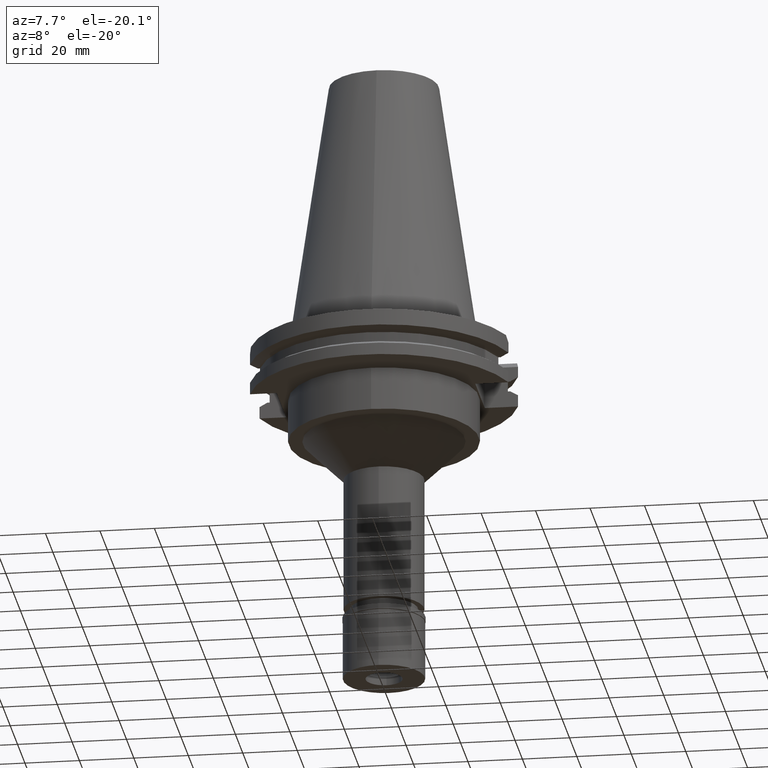
[diagram: clean part render]
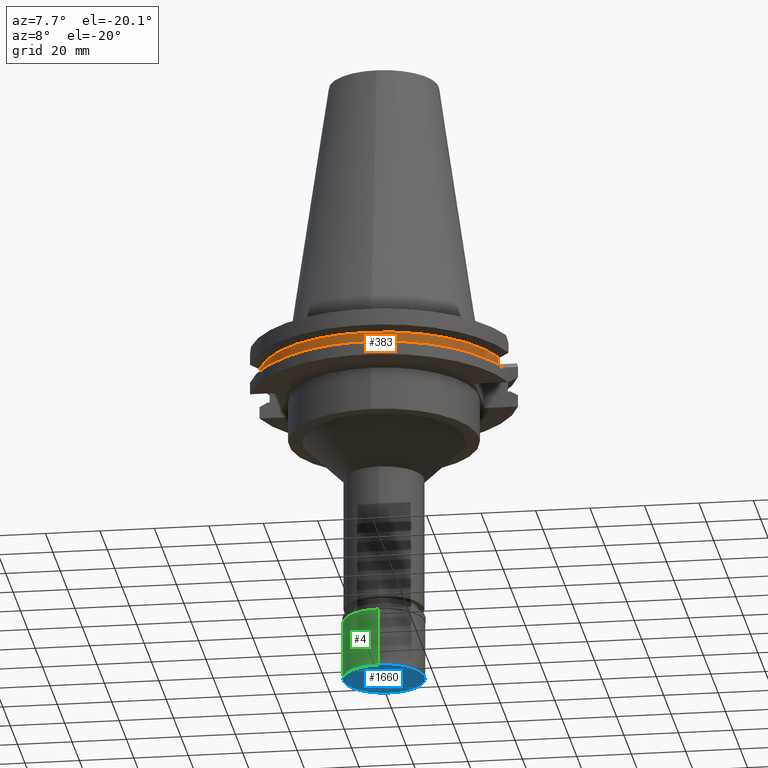
[diagram: same view with three faces highlighted in distinct colors, each labeled with its STEP entity id]
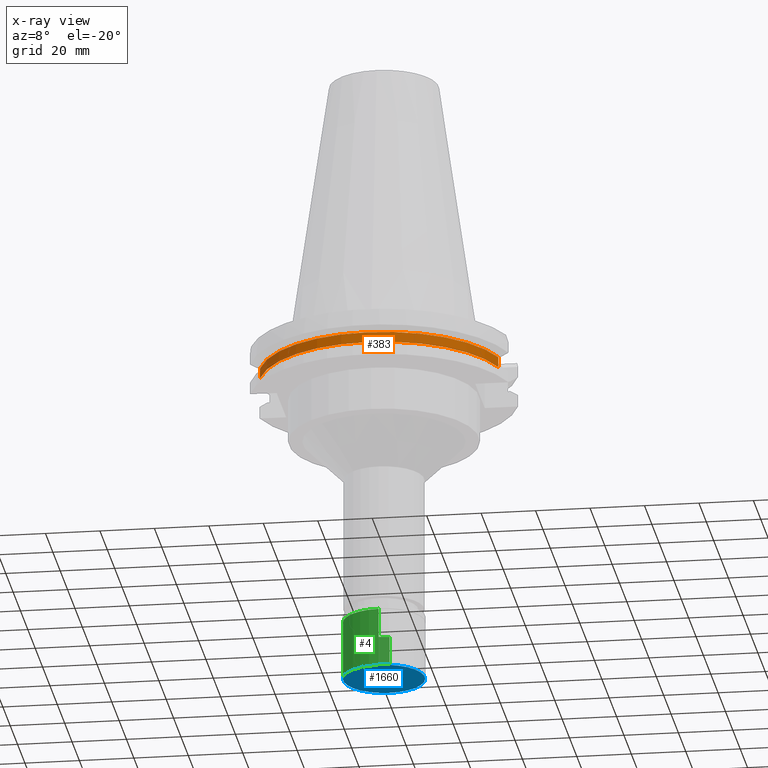
[diagram: x-ray of the same camera — body ghosted, the three highlighted faces saturated]
A machine part, auxiliary view with three faces highlighted in distinct colors.
The next image is the same camera in x-ray (body ghosted, the three faces saturated) — at least one of them is partly hidden behind the body in this view.
Their STEP definitions:

[orange] entity #383 — the highlighted cylindrical surface (partial cylindrical patch) has radius 45.645 mm, axis along (0, 0, -1).
#41 = ORIENTED_EDGE ( 'NONE', *, *, #2525, .T. ) ;
#360 = EDGE_CURVE ( 'NONE', #435, #1109, #395, .T. ) ;
#383 = ADVANCED_FACE ( 'NONE', ( #982 ), #1518, .T. ) ;
#395 = CIRCLE ( 'NONE', #721, 45.64499999999999602 ) ;
#435 = VERTEX_POINT ( 'NONE', #2762 ) ;
#622 = DIRECTION ( 'NONE',  ( 0.0000000000000000000, -1.000000000000000000, 0.0000000000000000000 ) ) ;
#657 = CARTESIAN_POINT ( 'NONE',  ( 0.0000000000000000000, 2.602741842227999566E-14, 112.5300000000000011 ) ) ;
#708 = DIRECTION ( 'NONE',  ( 0.0000000000000000000, 0.0000000000000000000, 1.000000000000000000 ) ) ;
#719 = ORIENTED_EDGE ( 'NONE', *, *, #2398, .F. ) ;
#721 = AXIS2_PLACEMENT_3D ( 'NONE', #1105, #1593, #1342 ) ;
#758 = CARTESIAN_POINT ( 'NONE',  ( 43.76795631508999662, -12.95500000000000007, -9.207499999999999574 ) ) ;
#959 = LINE ( 'NONE', #2442, #3115 ) ;
#982 = FACE_OUTER_BOUND ( 'NONE', #2833, .T. ) ;
#1011 = DIRECTION ( 'NONE',  ( 0.0000000000000000000, 0.0000000000000000000, -1.000000000000000000 ) ) ;
#1105 = CARTESIAN_POINT ( 'NONE',  ( 0.0000000000000000000, 2.602741842227999566E-14, -13.04749999999999943 ) ) ;
#1109 = VERTEX_POINT ( 'NONE', #2404 ) ;
#1295 = CARTESIAN_POINT ( 'NONE',  ( -43.76795631508999662, -12.95500000000000007, -9.207499999999999574 ) ) ;
#1342 = DIRECTION ( 'NONE',  ( 0.0000000000000000000, -1.000000000000000000, 0.0000000000000000000 ) ) ;
#1398 = VERTEX_POINT ( 'NONE', #758 ) ;
#1518 = CYLINDRICAL_SURFACE ( 'NONE', #1635, 45.64499999999999602 ) ;
#1538 = DIRECTION ( 'NONE',  ( 0.9588773428654665532, -0.2838207908861898887, 0.0000000000000000000 ) ) ;
#1539 = DIRECTION ( 'NONE',  ( 0.0000000000000000000, 0.0000000000000000000, -1.000000000000000000 ) ) ;
#1558 = EDGE_CURVE ( 'NONE', #435, #1702, #2775, .T. ) ;
#1584 = CARTESIAN_POINT ( 'NONE',  ( 0.0000000000000000000, 2.602741842227999566E-14, -9.207499999999999574 ) ) ;
#1593 = DIRECTION ( 'NONE',  ( 0.0000000000000000000, 0.0000000000000000000, 1.000000000000000000 ) ) ;
#1635 = AXIS2_PLACEMENT_3D ( 'NONE', #657, #1539, #622 ) ;
#1702 = VERTEX_POINT ( 'NONE', #1295 ) ;
#1924 = VECTOR ( 'NONE', #708, 1000.000000000000000 ) ;
#1995 = ORIENTED_EDGE ( 'NONE', *, *, #1558, .F. ) ;
#2234 = CARTESIAN_POINT ( 'NONE',  ( -43.76795631508999662, -12.95500000000000007, -13.04749999999999943 ) ) ;
#2262 = CIRCLE ( 'NONE', #2478, 45.64500000000001734 ) ;
#2398 = EDGE_CURVE ( 'NONE', #1398, #1109, #959, .T. ) ;
#2404 = CARTESIAN_POINT ( 'NONE',  ( 43.76795631508999662, -12.95500000000000007, -13.04749999999999943 ) ) ;
#2442 = CARTESIAN_POINT ( 'NONE',  ( 43.76795631508999662, -12.95500000000000007, -9.207499999999999574 ) ) ;
#2478 = AXIS2_PLACEMENT_3D ( 'NONE', #1584, #1011, #1538 ) ;
#2525 = EDGE_CURVE ( 'NONE', #1398, #1702, #2262, .T. ) ;
#2762 = CARTESIAN_POINT ( 'NONE',  ( -43.76795631508999662, -12.95500000000000007, -13.04749999999999943 ) ) ;
#2775 = LINE ( 'NONE', #2234, #1924 ) ;
#2833 = EDGE_LOOP ( 'NONE', ( #1995, #2894, #719, #41 ) ) ;
#2894 = ORIENTED_EDGE ( 'NONE', *, *, #360, .T. ) ;
#2938 = DIRECTION ( 'NONE',  ( 0.0000000000000000000, 0.0000000000000000000, -1.000000000000000000 ) ) ;
#3115 = VECTOR ( 'NONE', #2938, 1000.000000000000000 ) ;

[blue] entity #1660 — the highlighted planar face has unit normal (0, 0, -1).
#59 = CARTESIAN_POINT ( 'NONE',  ( 0.0000000000000000000, -6.750000000000000000, -23.80000000000000071 ) ) ;
#240 = DIRECTION ( 'NONE',  ( 0.0000000000000000000, 0.0000000000000000000, -1.000000000000000000 ) ) ;
#287 = EDGE_CURVE ( 'NONE', #1668, #1621, #447, .T. ) ;
#364 = DIRECTION ( 'NONE',  ( 0.0000000000000000000, 0.0000000000000000000, 1.000000000000000000 ) ) ;
#447 = CIRCLE ( 'NONE', #3117, 6.750000000000000000 ) ;
#457 = AXIS2_PLACEMENT_3D ( 'NONE', #1405, #3240, #2223 ) ;
#485 = DIRECTION ( 'NONE',  ( 0.0000000000000000000, 1.000000000000000000, 0.0000000000000000000 ) ) ;
#562 = PLANE ( 'NONE',  #2569 ) ;
#803 = DIRECTION ( 'NONE',  ( 0.0000000000000000000, 0.0000000000000000000, -1.000000000000000000 ) ) ;
#857 = CARTESIAN_POINT ( 'NONE',  ( 0.0000000000000000000, 0.0000000000000000000, -23.80000000000000071 ) ) ;
#1041 = CARTESIAN_POINT ( 'NONE',  ( 0.0000000000000000000, 6.750000000000000000, -23.80000000000000071 ) ) ;
#1072 = CARTESIAN_POINT ( 'NONE',  ( 0.0000000000000000000, 0.0000000000000000000, -23.80000000000000071 ) ) ;
#1096 = CARTESIAN_POINT ( 'NONE',  ( 0.0000000000000000000, -15.00000000000000000, -23.80000000000000071 ) ) ;
#1134 = DIRECTION ( 'NONE',  ( 0.0000000000000000000, 1.000000000000000000, 0.0000000000000000000 ) ) ;
#1191 = AXIS2_PLACEMENT_3D ( 'NONE', #857, #364, #1134 ) ;
#1248 = CIRCLE ( 'NONE', #457, 15.00000000000000000 ) ;
#1344 = FACE_BOUND ( 'NONE', #1652, .T. ) ;
#1357 = CARTESIAN_POINT ( 'NONE',  ( 0.0000000000000000000, 15.00000000000000000, -23.80000000000000071 ) ) ;
#1405 = CARTESIAN_POINT ( 'NONE',  ( 0.0000000000000000000, 0.0000000000000000000, -23.80000000000000071 ) ) ;
#1561 = EDGE_CURVE ( 'NONE', #1621, #1668, #2836, .T. ) ;
#1621 = VERTEX_POINT ( 'NONE', #1041 ) ;
#1646 = VERTEX_POINT ( 'NONE', #1096 ) ;
#1652 = EDGE_LOOP ( 'NONE', ( #2951, #2317 ) ) ;
#1660 = ADVANCED_FACE ( 'NONE', ( #1846, #1344 ), #562, .T. ) ;
#1668 = VERTEX_POINT ( 'NONE', #59 ) ;
#1785 = CARTESIAN_POINT ( 'NONE',  ( 0.0000000000000000000, 0.0000000000000000000, -23.80000000000000071 ) ) ;
#1787 = CIRCLE ( 'NONE', #1191, 15.00000000000000000 ) ;
#1802 = DIRECTION ( 'NONE',  ( 0.0000000000000000000, -1.000000000000000000, 0.0000000000000000000 ) ) ;
#1846 = FACE_OUTER_BOUND ( 'NONE', #2672, .T. ) ;
#1930 = ORIENTED_EDGE ( 'NONE', *, *, #2821, .F. ) ;
#2052 = CARTESIAN_POINT ( 'NONE',  ( 0.0000000000000000000, 0.0000000000000000000, -23.80000000000000071 ) ) ;
#2149 = VERTEX_POINT ( 'NONE', #1357 ) ;
#2223 = DIRECTION ( 'NONE',  ( 0.0000000000000000000, -1.000000000000000000, 0.0000000000000000000 ) ) ;
#2317 = ORIENTED_EDGE ( 'NONE', *, *, #287, .F. ) ;
#2322 = DIRECTION ( 'NONE',  ( 0.0000000000000000000, -1.000000000000000000, 0.0000000000000000000 ) ) ;
#2415 = ORIENTED_EDGE ( 'NONE', *, *, #2891, .F. ) ;
#2569 = AXIS2_PLACEMENT_3D ( 'NONE', #1072, #803, #2322 ) ;
#2672 = EDGE_LOOP ( 'NONE', ( #1930, #2415 ) ) ;
#2821 = EDGE_CURVE ( 'NONE', #2149, #1646, #1787, .T. ) ;
#2836 = CIRCLE ( 'NONE', #3264, 6.750000000000000000 ) ;
#2891 = EDGE_CURVE ( 'NONE', #1646, #2149, #1248, .T. ) ;
#2951 = ORIENTED_EDGE ( 'NONE', *, *, #1561, .F. ) ;
#3086 = DIRECTION ( 'NONE',  ( 0.0000000000000000000, 0.0000000000000000000, -1.000000000000000000 ) ) ;
#3117 = AXIS2_PLACEMENT_3D ( 'NONE', #1785, #3086, #1802 ) ;
#3240 = DIRECTION ( 'NONE',  ( 0.0000000000000000000, 0.0000000000000000000, 1.000000000000000000 ) ) ;
#3264 = AXIS2_PLACEMENT_3D ( 'NONE', #2052, #240, #485 ) ;

[green] entity #4 — the highlighted cylindrical surface (partial cylindrical patch) has radius 15 mm, axis along (0, 0, -1).
#4 = ADVANCED_FACE ( 'NONE', ( #451 ), #3272, .T. ) ;
#35 = DIRECTION ( 'NONE',  ( 0.0000000000000000000, 0.0000000000000000000, -1.000000000000000000 ) ) ;
#113 = VECTOR ( 'NONE', #1762, 1000.000000000000000 ) ;
#216 = EDGE_LOOP ( 'NONE', ( #1095, #1671, #2978, #958 ) ) ;
#276 = VECTOR ( 'NONE', #1390, 1000.000000000000000 ) ;
#331 = AXIS2_PLACEMENT_3D ( 'NONE', #974, #1759, #486 ) ;
#364 = DIRECTION ( 'NONE',  ( 0.0000000000000000000, 0.0000000000000000000, 1.000000000000000000 ) ) ;
#451 = FACE_OUTER_BOUND ( 'NONE', #216, .T. ) ;
#482 = EDGE_CURVE ( 'NONE', #1721, #1646, #2987, .T. ) ;
#486 = DIRECTION ( 'NONE',  ( 0.0000000000000000000, -1.000000000000000000, 0.0000000000000000000 ) ) ;
#857 = CARTESIAN_POINT ( 'NONE',  ( 0.0000000000000000000, 0.0000000000000000000, -23.80000000000000071 ) ) ;
#933 = CARTESIAN_POINT ( 'NONE',  ( 0.0000000000000000000, -15.00000000000000000, -2.100000000000000089 ) ) ;
#958 = ORIENTED_EDGE ( 'NONE', *, *, #2624, .T. ) ;
#974 = CARTESIAN_POINT ( 'NONE',  ( 0.0000000000000000000, 0.0000000000000000000, 0.0000000000000000000 ) ) ;
#1005 = EDGE_CURVE ( 'NONE', #1721, #1575, #2511, .T. ) ;
#1056 = AXIS2_PLACEMENT_3D ( 'NONE', #2831, #35, #2337 ) ;
#1095 = ORIENTED_EDGE ( 'NONE', *, *, #2821, .T. ) ;
#1096 = CARTESIAN_POINT ( 'NONE',  ( 0.0000000000000000000, -15.00000000000000000, -23.80000000000000071 ) ) ;
#1134 = DIRECTION ( 'NONE',  ( 0.0000000000000000000, 1.000000000000000000, 0.0000000000000000000 ) ) ;
#1191 = AXIS2_PLACEMENT_3D ( 'NONE', #857, #364, #1134 ) ;
#1357 = CARTESIAN_POINT ( 'NONE',  ( 0.0000000000000000000, 15.00000000000000000, -23.80000000000000071 ) ) ;
#1375 = CARTESIAN_POINT ( 'NONE',  ( 0.0000000000000000000, 15.00000000000000000, -2.100000000000000089 ) ) ;
#1390 = DIRECTION ( 'NONE',  ( 0.0000000000000000000, 0.0000000000000000000, -1.000000000000000000 ) ) ;
#1575 = VERTEX_POINT ( 'NONE', #3087 ) ;
#1646 = VERTEX_POINT ( 'NONE', #1096 ) ;
#1671 = ORIENTED_EDGE ( 'NONE', *, *, #482, .F. ) ;
#1721 = VERTEX_POINT ( 'NONE', #933 ) ;
#1759 = DIRECTION ( 'NONE',  ( 0.0000000000000000000, 0.0000000000000000000, -1.000000000000000000 ) ) ;
#1762 = DIRECTION ( 'NONE',  ( 0.0000000000000000000, 0.0000000000000000000, -1.000000000000000000 ) ) ;
#1787 = CIRCLE ( 'NONE', #1191, 15.00000000000000000 ) ;
#2022 = CARTESIAN_POINT ( 'NONE',  ( 0.0000000000000000000, -15.00000000000000000, -2.100000000000000089 ) ) ;
#2149 = VERTEX_POINT ( 'NONE', #1357 ) ;
#2337 = DIRECTION ( 'NONE',  ( 0.0000000000000000000, -1.000000000000000000, 0.0000000000000000000 ) ) ;
#2375 = LINE ( 'NONE', #1375, #276 ) ;
#2511 = CIRCLE ( 'NONE', #1056, 15.00000000000000000 ) ;
#2624 = EDGE_CURVE ( 'NONE', #1575, #2149, #2375, .T. ) ;
#2821 = EDGE_CURVE ( 'NONE', #2149, #1646, #1787, .T. ) ;
#2831 = CARTESIAN_POINT ( 'NONE',  ( 0.0000000000000000000, 0.0000000000000000000, -2.100000000000000089 ) ) ;
#2978 = ORIENTED_EDGE ( 'NONE', *, *, #1005, .T. ) ;
#2987 = LINE ( 'NONE', #2022, #113 ) ;
#3087 = CARTESIAN_POINT ( 'NONE',  ( 0.0000000000000000000, 15.00000000000000000, -2.100000000000000089 ) ) ;
#3272 = CYLINDRICAL_SURFACE ( 'NONE', #331, 15.00000000000000000 ) ;